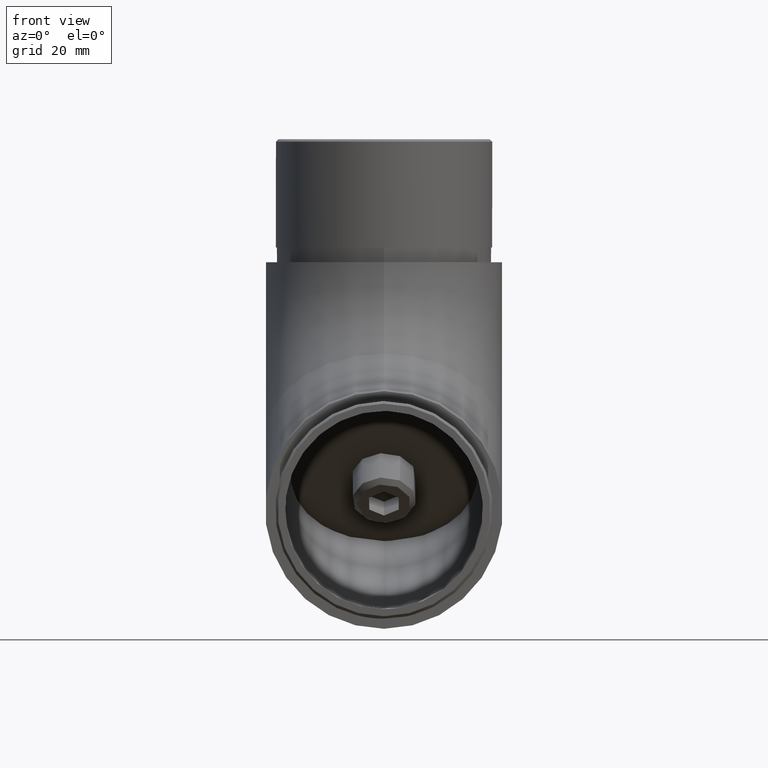
[diagram: clean part render]
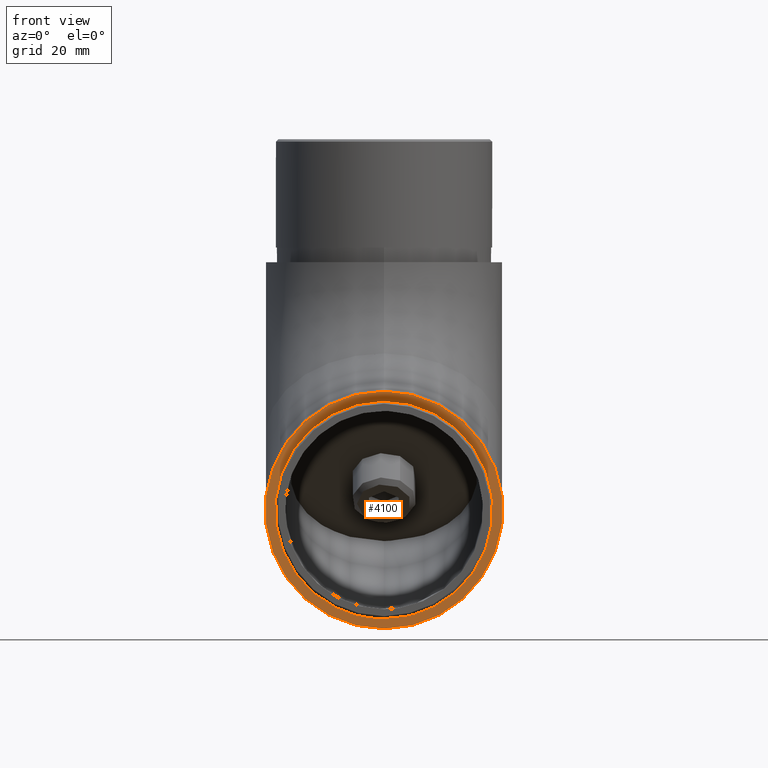
[diagram: same view with one face highlighted and labeled with its STEP entity id]
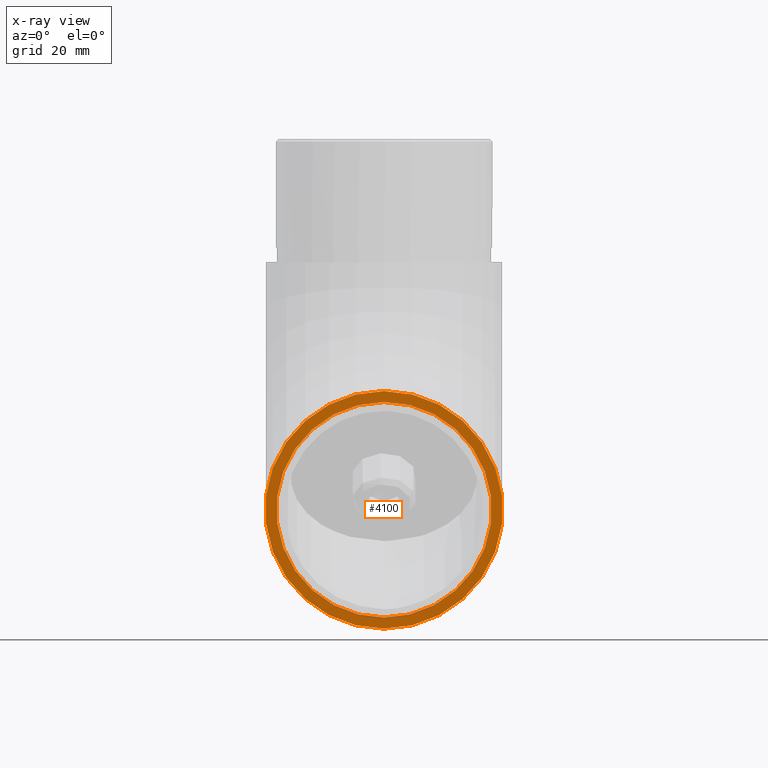
[diagram: x-ray of the same camera — body ghosted, the highlighted face saturated]
A machine part, front view. The second image highlights one B-rep face of the part: STEP entity #4100.
The next image is the same camera in x-ray: the body ghosted, the highlighted face saturated — about 9% of this face is hidden behind the body in this view.
In plain terms, the highlighted planar face has unit normal (0, 1, 0).
Its self-contained STEP definition (entity closure, byte-faithful):
#170 = DIRECTION ( 'NONE',  ( 0.0000000000000000000, -0.0000000000000000000, 1.000000000000000000 ) ) ;
#270 = PLANE ( 'NONE',  #10810 ) ;
#2678 = EDGE_LOOP ( 'NONE', ( #9939 ) ) ;
#3330 = DIRECTION ( 'NONE',  ( 0.0000000000000000000, 1.000000000000000000, 0.0000000000000000000 ) ) ;
#3505 = CARTESIAN_POINT ( 'NONE',  ( 0.0000000000000000000, 0.0000000000000000000, 0.0000000000000000000 ) ) ;
#3612 = DIRECTION ( 'NONE',  ( 0.0000000000000000000, 0.0000000000000000000, 1.000000000000000000 ) ) ;
#4091 = DIRECTION ( 'NONE',  ( 0.0000000000000000000, 1.000000000000000000, 0.0000000000000000000 ) ) ;
#4100 = ADVANCED_FACE ( 'NONE', ( #14135, #15105 ), #270, .F. ) ;
#4404 = CARTESIAN_POINT ( 'NONE',  ( 0.0000000000000000000, 0.0000000000000000000, 24.14999999999999900 ) ) ;
#5617 = CARTESIAN_POINT ( 'NONE',  ( 0.0000000000000000000, 0.0000000000000000000, 0.0000000000000000000 ) ) ;
#5690 = VERTEX_POINT ( 'NONE', #4404 ) ;
#5738 = CIRCLE ( 'NONE', #10209, 21.90000000000000600 ) ;
#7081 = CIRCLE ( 'NONE', #15644, 24.14999999999999900 ) ;
#7607 = CARTESIAN_POINT ( 'NONE',  ( 0.0000000000000000000, 0.0000000000000000000, 0.0000000000000000000 ) ) ;
#7957 = CARTESIAN_POINT ( 'NONE',  ( 0.0000000000000000000, 0.0000000000000000000, 21.90000000000000600 ) ) ;
#8148 = DIRECTION ( 'NONE',  ( 0.0000000000000000000, 0.0000000000000000000, 1.000000000000000000 ) ) ;
#9939 = ORIENTED_EDGE ( 'NONE', *, *, #11561, .F. ) ;
#10209 = AXIS2_PLACEMENT_3D ( 'NONE', #3505, #10958, #3612 ) ;
#10810 = AXIS2_PLACEMENT_3D ( 'NONE', #7607, #4091, #170 ) ;
#10958 = DIRECTION ( 'NONE',  ( -0.0000000000000000000, -1.000000000000000000, -0.0000000000000000000 ) ) ;
#11158 = EDGE_CURVE ( 'NONE', #13069, #13069, #5738, .T. ) ;
#11307 = EDGE_LOOP ( 'NONE', ( #15520 ) ) ;
#11561 = EDGE_CURVE ( 'NONE', #5690, #5690, #7081, .T. ) ;
#13069 = VERTEX_POINT ( 'NONE', #7957 ) ;
#14135 = FACE_OUTER_BOUND ( 'NONE', #2678, .T. ) ;
#15105 = FACE_BOUND ( 'NONE', #11307, .T. ) ;
#15520 = ORIENTED_EDGE ( 'NONE', *, *, #11158, .F. ) ;
#15644 = AXIS2_PLACEMENT_3D ( 'NONE', #5617, #3330, #8148 ) ;